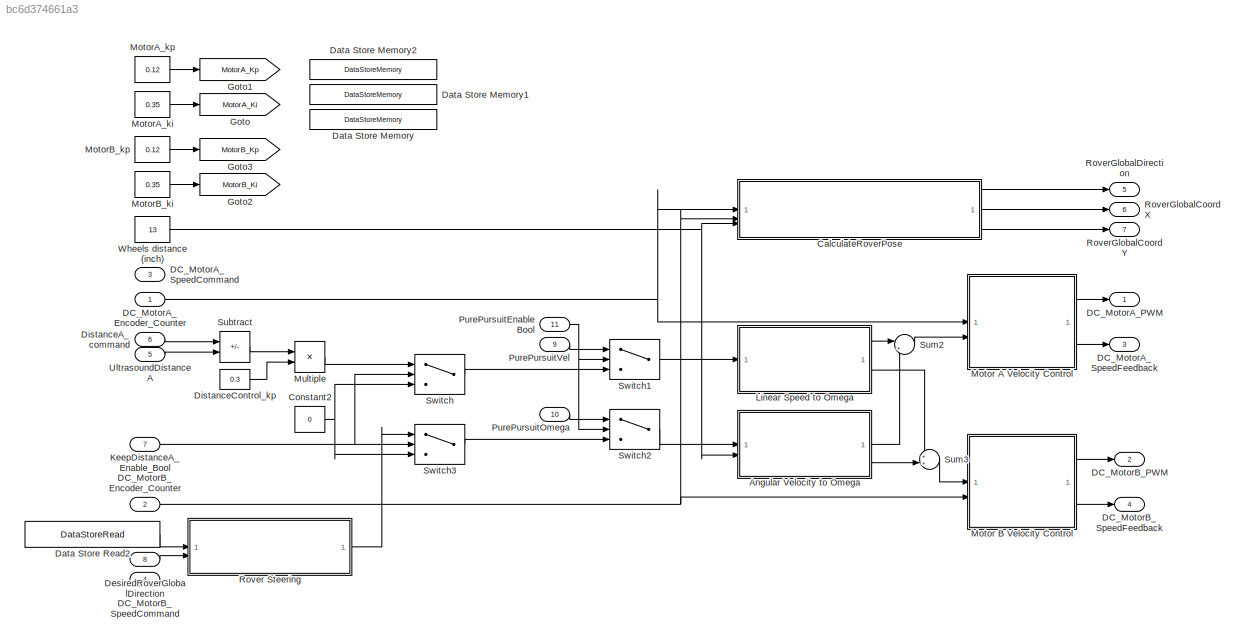
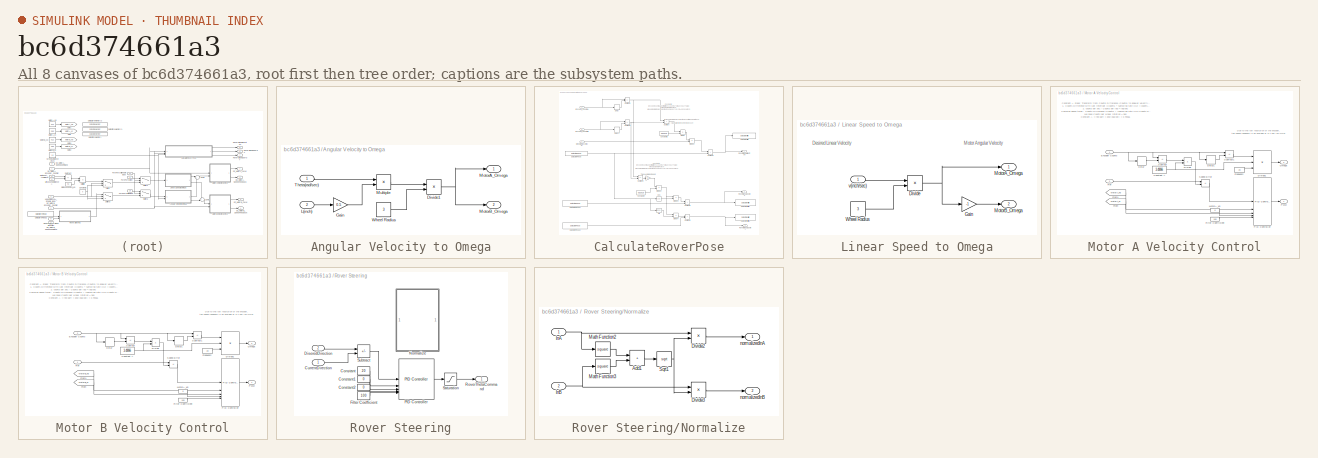
[diagram: thumbnail index - all 8 canvases of the model, root first then tree order]
MODEL slx_bc6d374661a3
KIND model
CONFIG AbsTol = auto
CONFIG EnableMultiTasking = off
CONFIG FixedStep = 0.005
CONFIG MaxStep = auto
CONFIG MinStep = auto
CONFIG RelTol = 1e-3
CONFIG SampleTimeConstraint = Unconstrained
CONFIG SolverName = FixedStepDiscrete
CONFIG StartTime = 0.0
CONFIG StopTime = Inf
WORKSPACE source: mxarray member
WORKSPACE SetSpeed = 0
BLOCK [SubSystem] Angular Velocity to Omega
BLOCK [Product] Angular Velocity to Omega/Divide1
  Inputs = */
BLOCK [Gain] Angular Velocity to Omega/Gain
  Gain = 0.5
BLOCK [Inport] Angular Velocity to Omega/L(inch)
  Port = 2
BLOCK [Outport] Angular Velocity to Omega/MotorA_Omega
BLOCK [Outport] Angular Velocity to Omega/MotorB_Omega
  Port = 2
BLOCK [Product] Angular Velocity to Omega/Multiple
  Inputs = **
BLOCK [Inport] Angular Velocity to Omega/Theta(rad//sec)
BLOCK [Constant] Angular Velocity to Omega/Wheel Radius
  Value = 3
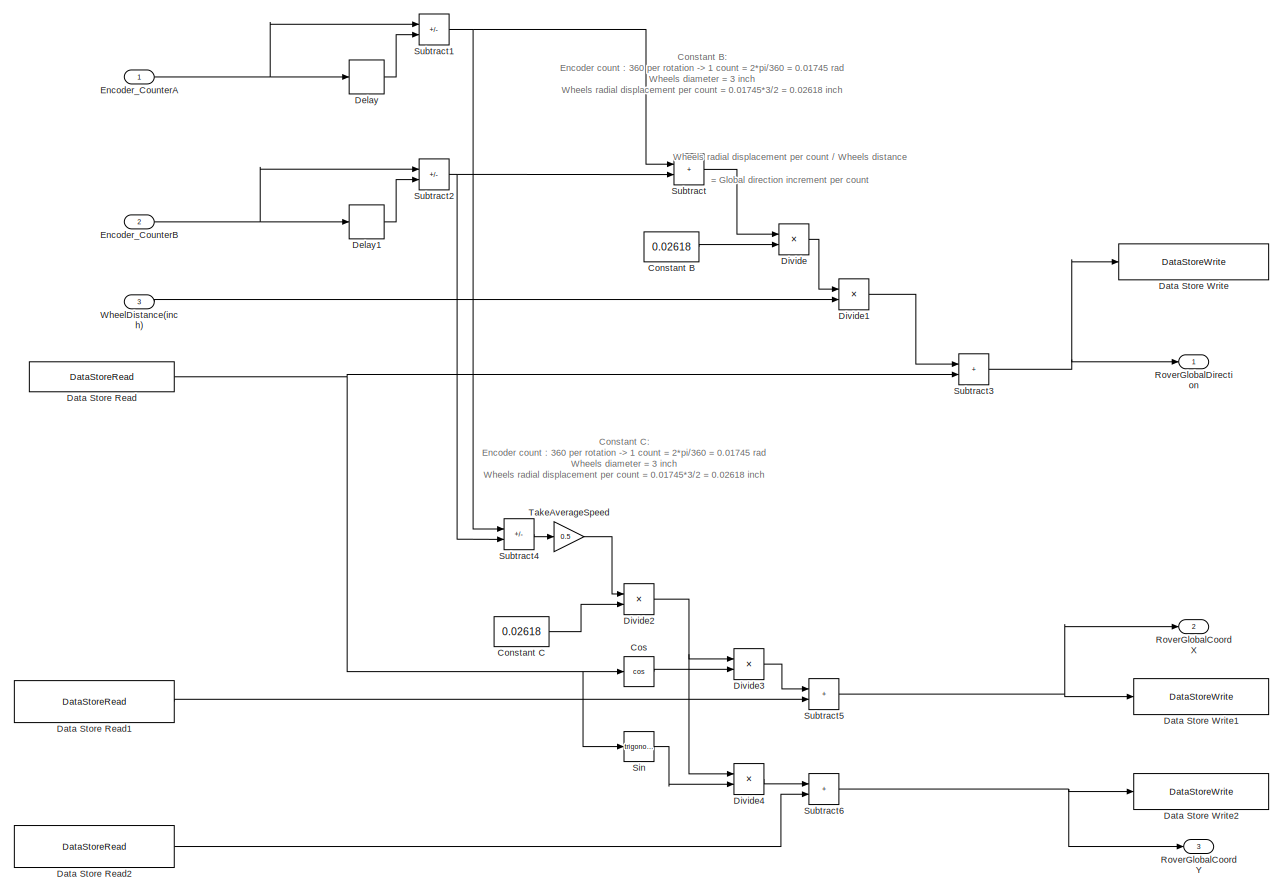
[diagram: CalculateRoverPose - part 1/1, most of the canvas]
BLOCK [SubSystem] CalculateRoverPose
BLOCK [Constant] CalculateRoverPose/Constant B
  Value = 0.02618
BLOCK [Constant] CalculateRoverPose/Constant C
  Value = 0.02618
BLOCK [Trigonometry] CalculateRoverPose/Cos
  Operator = cos
BLOCK [DataStoreRead] CalculateRoverPose/Data Store Read
  DataStoreName = CurrentGlobalDirection
  IndexOptions = Index vector (dialog)
  Indices = 1
  OutputSizes = 1
BLOCK [DataStoreRead] CalculateRoverPose/Data Store Read1
  DataStoreName = CurrentGlobalCoordinateX
  IndexOptions = Index vector (dialog)
  Indices = 1
  OutputSizes = 1
BLOCK [DataStoreRead] CalculateRoverPose/Data Store Read2
  DataStoreName = CurrentGlobalCoordinateY
  IndexOptions = Index vector (dialog)
  Indices = 1
  OutputSizes = 1
BLOCK [DataStoreWrite] CalculateRoverPose/Data Store Write
  DataStoreName = CurrentGlobalDirection
  IndexOptions = Index vector (dialog)
  Indices = 1
  OutputSizes = 1
BLOCK [DataStoreWrite] CalculateRoverPose/Data Store Write1
  DataStoreName = CurrentGlobalCoordinateX
  IndexOptions = Index vector (dialog)
  Indices = 1
  OutputSizes = 1
BLOCK [DataStoreWrite] CalculateRoverPose/Data Store Write2
  DataStoreName = CurrentGlobalCoordinateY
  IndexOptions = Index vector (dialog)
  Indices = 1
  OutputSizes = 1
BLOCK [Delay] CalculateRoverPose/Delay
  DelayLength = 1
  InputPortMap = u0
BLOCK [Delay] CalculateRoverPose/Delay1
  DelayLength = 1
  InputPortMap = u0
BLOCK [Product] CalculateRoverPose/Divide
  Inputs = **
BLOCK [Product] CalculateRoverPose/Divide1
  Inputs = */
BLOCK [Product] CalculateRoverPose/Divide2
  Inputs = **
BLOCK [Product] CalculateRoverPose/Divide3
  Inputs = **
BLOCK [Product] CalculateRoverPose/Divide4
  Inputs = **
BLOCK [Inport] CalculateRoverPose/Encoder_CounterA
BLOCK [Inport] CalculateRoverPose/Encoder_CounterB
  Port = 2
BLOCK [Outport] CalculateRoverPose/RoverGlobalCoordX
  Port = 2
BLOCK [Outport] CalculateRoverPose/RoverGlobalCoordY
  Port = 3
BLOCK [Outport] CalculateRoverPose/RoverGlobalDirection
BLOCK [Trigonometry] CalculateRoverPose/Sin
BLOCK [Sum] CalculateRoverPose/Subtract
  IconShape = rectangular
BLOCK [Sum] CalculateRoverPose/Subtract1
  IconShape = rectangular
  Inputs = +-
BLOCK [Sum] CalculateRoverPose/Subtract2
  IconShape = rectangular
  Inputs = +-
BLOCK [Sum] CalculateRoverPose/Subtract3
  IconShape = rectangular
BLOCK [Sum] CalculateRoverPose/Subtract4
  IconShape = rectangular
  Inputs = +-
BLOCK [Sum] CalculateRoverPose/Subtract5
  IconShape = rectangular
BLOCK [Sum] CalculateRoverPose/Subtract6
  IconShape = rectangular
BLOCK [Gain] CalculateRoverPose/TakeAverageSpeed
  Gain = 0.5
BLOCK [Inport] CalculateRoverPose/WheelDistance(inch)
  Port = 3
BLOCK [Constant] Constant2
  Value = 0
BLOCK [Inport] DC_MotorA_Encoder_Counter
  NameLocation = left
BLOCK [Outport] DC_MotorA_PWM
  NameLocation = right
BLOCK [Inport] DC_MotorA_SpeedCommand
  NameLocation = left
  Port = 3
BLOCK [Outport] DC_MotorA_SpeedFeedback
  NameLocation = right
  Port = 3
BLOCK [Inport] DC_MotorB_Encoder_Counter
  NameLocation = left
  Port = 2
BLOCK [Outport] DC_MotorB_PWM
  NameLocation = right
  Port = 2
BLOCK [Inport] DC_MotorB_SpeedCommand
  NameLocation = left
  Port = 4
BLOCK [Outport] DC_MotorB_SpeedFeedback
  NameLocation = right
  Port = 4
BLOCK [DataStoreMemory] Data Store Memory
  DataStoreName = CurrentGlobalDirection
  ShowAdditionalParam = off
  WriteAfterWriteMsg = warning
BLOCK [DataStoreMemory] Data Store Memory1
  DataStoreName = CurrentGlobalCoordinateX
  ShowAdditionalParam = off
  WriteAfterWriteMsg = warning
BLOCK [DataStoreMemory] Data Store Memory2
  DataStoreName = CurrentGlobalCoordinateY
  ShowAdditionalParam = off
  WriteAfterWriteMsg = warning
BLOCK [DataStoreRead] Data Store Read2
  DataStoreName = CurrentGlobalDirection
  IndexOptions = Index vector (dialog)
  Indices = 1
  OutputSizes = 1
BLOCK [Inport] DesiredRoverGlobalDirection
  NameLocation = left
  Port = 8
BLOCK [Inport] DistanceA_command
  NameLocation = left
  Port = 6
BLOCK [Constant] DistanceControl_kp
  Value = 0.3
BLOCK [Goto] Goto
  GotoTag = MotorA_Ki
  TagVisibility = global
BLOCK [Goto] Goto1
  GotoTag = MotorA_Kp
  TagVisibility = global
BLOCK [Goto] Goto2
  GotoTag = MotorB_Ki
  TagVisibility = global
BLOCK [Goto] Goto3
  GotoTag = MotorB_Kp
  TagVisibility = global
BLOCK [Inport] KeepDistanceA_Enable_Bool
  NameLocation = left
  Port = 7
BLOCK [SubSystem] Linear Speed to Omega
BLOCK [Product] Linear Speed to Omega/Divide
  Inputs = */
BLOCK [Gain] Linear Speed to Omega/Gain
  Gain = -1
BLOCK [Outport] Linear Speed to Omega/MotorA_Omega
BLOCK [Outport] Linear Speed to Omega/MotorB_Omega
  Port = 2
BLOCK [Constant] Linear Speed to Omega/Wheel Radius
  Value = 3
BLOCK [Inport] Linear Speed to Omega/v(inch//sec)
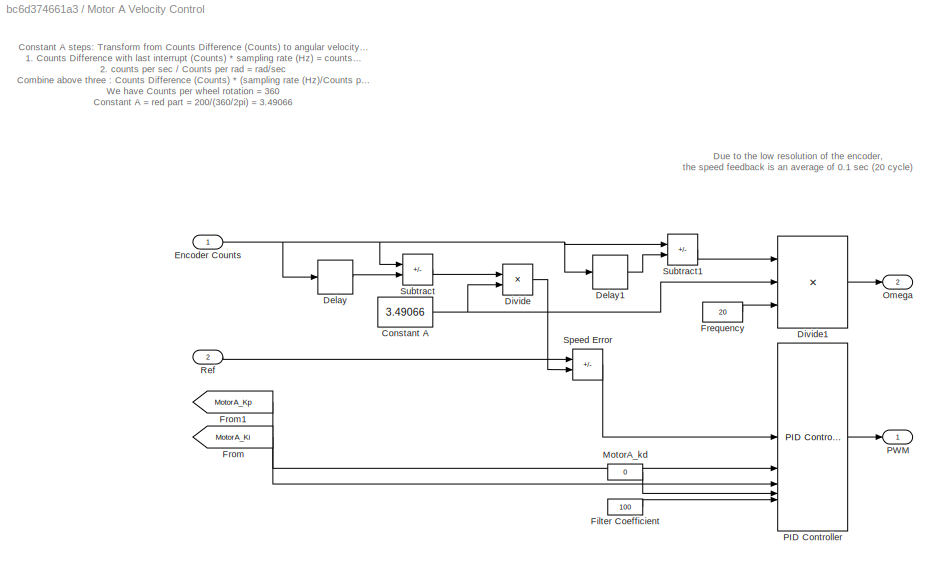
BLOCK [SubSystem] Motor A Velocity Control
BLOCK [Constant] Motor A Velocity Control/Constant A
  Value = 3.49066
BLOCK [Delay] Motor A Velocity Control/Delay
  DelayLength = 1
  InputPortMap = u0
BLOCK [Delay] Motor A Velocity Control/Delay1
  DelayLength = 20
  InputPortMap = u0
BLOCK [Product] Motor A Velocity Control/Divide
  Inputs = **
BLOCK [Product] Motor A Velocity Control/Divide1
  Inputs = **/
BLOCK [Inport] Motor A Velocity Control/Encoder Counts
BLOCK [Constant] Motor A Velocity Control/Filter Coefficient
  NameLocation = left
  Value = 100
BLOCK [Constant] Motor A Velocity Control/Frequency
  Value = 20
BLOCK [From] Motor A Velocity Control/From
  GotoTag = MotorA_Ki
  TagVisibility = global
BLOCK [From] Motor A Velocity Control/From1
  GotoTag = MotorA_Kp
  TagVisibility = global
BLOCK [Constant] Motor A Velocity Control/MotorA_kd
  NameLocation = left
  Value = 0
BLOCK [Outport] Motor A Velocity Control/Omega
  Port = 2
BLOCK [Reference] Motor A Velocity Control/PID Controller  REF=slpidlib/PID Controller
  LibrarySourceBlock = simulink/Continuous/PID Controller
  SourceBlock = slpidlib/PID Controller
  SourceType = PID 1dof
BLOCK [Outport] Motor A Velocity Control/PWM
BLOCK [Inport] Motor A Velocity Control/Ref
  Port = 2
BLOCK [Sum] Motor A Velocity Control/Speed Error
  IconShape = rectangular
  Inputs = +-
BLOCK [Sum] Motor A Velocity Control/Subtract
  IconShape = rectangular
  Inputs = +-
BLOCK [Sum] Motor A Velocity Control/Subtract1
  IconShape = rectangular
  Inputs = +-
BLOCK [SubSystem] Motor B Velocity Control
BLOCK [Constant] Motor B Velocity Control/Constant A
  Value = 3.49066
BLOCK [Delay] Motor B Velocity Control/Delay
  DelayLength = 1
  InputPortMap = u0
BLOCK [Delay] Motor B Velocity Control/Delay1
  DelayLength = 20
  InputPortMap = u0
BLOCK [Product] Motor B Velocity Control/Divide
  Inputs = **
BLOCK [Product] Motor B Velocity Control/Divide1
  Inputs = **/
BLOCK [Inport] Motor B Velocity Control/Encoder Counts
  Port = 2
BLOCK [Constant] Motor B Velocity Control/Filter Coefficient
  NameLocation = left
  Value = 100
BLOCK [Constant] Motor B Velocity Control/Frequency
  Value = 20
BLOCK [From] Motor B Velocity Control/From
  GotoTag = MotorB_Ki
  TagVisibility = global
BLOCK [From] Motor B Velocity Control/From1
  GotoTag = MotorB_Kp
  TagVisibility = global
BLOCK [Constant] Motor B Velocity Control/MotorA_kd
  NameLocation = left
  Value = 0
BLOCK [Outport] Motor B Velocity Control/Omega
  Port = 2
BLOCK [Reference] Motor B Velocity Control/PID Controller  REF=slpidlib/PID Controller
  SourceBlock = slpidlib/PID Controller
  SourceType = PID 1dof
BLOCK [Outport] Motor B Velocity Control/PWM
BLOCK [Inport] Motor B Velocity Control/Ref
BLOCK [Sum] Motor B Velocity Control/Speed Error
  IconShape = rectangular
  Inputs = +-
BLOCK [Sum] Motor B Velocity Control/Subtract
  IconShape = rectangular
  Inputs = +-
BLOCK [Sum] Motor B Velocity Control/Subtract1
  IconShape = rectangular
  Inputs = +-
BLOCK [Constant] MotorA_ki
  NameLocation = left
  Value = 0.35
BLOCK [Constant] MotorA_kp
  NameLocation = left
  Value = 0.12
BLOCK [Constant] MotorB_ki
  NameLocation = left
  Value = 0.35
BLOCK [Constant] MotorB_kp
  NameLocation = left
  Value = 0.12
BLOCK [Product] Multiple
  Inputs = **
BLOCK [Inport] PurePursuitEnableBool
  NameLocation = left
  Port = 11
BLOCK [Inport] PurePursuitOmega
  NameLocation = left
  Port = 10
BLOCK [Inport] PurePursuitVel
  NameLocation = left
  Port = 9
BLOCK [SubSystem] Rover Steering
BLOCK [Constant] Rover Steering/Constant
  Value = 20
BLOCK [Constant] Rover Steering/Constant1
  Value = 0
BLOCK [Constant] Rover Steering/Constant2
  Value = 0
BLOCK [Inport] Rover Steering/CurrentDirection
BLOCK [Inport] Rover Steering/DiseredDirection
  Port = 2
BLOCK [Constant] Rover Steering/Filter Coefficient
  Value = 100
BLOCK [SubSystem] Rover Steering/Normalize
  Commented = on
BLOCK [Sum] Rover Steering/Normalize/Add1
  IconShape = rectangular
BLOCK [Product] Rover Steering/Normalize/Divide2
  Inputs = */
BLOCK [Product] Rover Steering/Normalize/Divide3
  Inputs = */
BLOCK [Inport] Rover Steering/Normalize/InA
BLOCK [Inport] Rover Steering/Normalize/InB
  Port = 2
BLOCK [Math] Rover Steering/Normalize/Math Function2
  Operator = square
BLOCK [Math] Rover Steering/Normalize/Math Function3
  Operator = square
BLOCK [Sqrt] Rover Steering/Normalize/Sqrt1
BLOCK [Outport] Rover Steering/Normalize/normalizedInA
BLOCK [Outport] Rover Steering/Normalize/normalizedInB
  Port = 2
BLOCK [Reference] Rover Steering/PID Controller  REF=slpidlib/PID Controller
  LibrarySourceBlock = simulink/Continuous/PID Controller
  SourceBlock = slpidlib/PID Controller
  SourceType = PID 1dof
BLOCK [Outport] Rover Steering/RoverThetaCommand
BLOCK [Saturate] Rover Steering/Saturation
  LowerLimit = -4
  UpperLimit = 4
BLOCK [Sum] Rover Steering/Subtract
  IconShape = rectangular
  Inputs = +-
BLOCK [Outport] RoverGlobalCoordX
  NameLocation = right
  Port = 6
BLOCK [Outport] RoverGlobalCoordY
  NameLocation = right
  Port = 7
BLOCK [Outport] RoverGlobalDirection
  NameLocation = right
  Port = 5
BLOCK [Sum] Subtract
  IconShape = rectangular
  Inputs = +-
BLOCK [Sum] Sum2
  Inputs = |++
BLOCK [Sum] Sum3
  Inputs = ++|
BLOCK [Switch] Switch
  Criteria = u2 > Threshold
  InputSameDT = off
  SaturateOnIntegerOverflow = off
BLOCK [Switch] Switch1
  Criteria = u2 > Threshold
  InputSameDT = off
  SaturateOnIntegerOverflow = off
BLOCK [Switch] Switch2
  Criteria = u2 > Threshold
  InputSameDT = off
  SaturateOnIntegerOverflow = off
BLOCK [Switch] Switch3
  Criteria = u2 > Threshold
  InputSameDT = off
  SaturateOnIntegerOverflow = off
BLOCK [Inport] UltrasoundDistanceA
  NameLocation = left
  Port = 5
BLOCK [Constant] Wheels distance (inch)
  NameLocation = left
  Value = 13
ANNOTATION CalculateRoverPose: Constant B: Encoder count : 360 per rotation -> 1 count = 2*pi/360 = 0.01745 rad Wheels diameter = 3 inch Wheels radial displacement per count = 0.01745*3/2 = 0.02618 inch
ANNOTATION CalculateRoverPose: Constant C: Encoder count : 360 per rotation -> 1 count = 2*pi/360 = 0.01745 rad Wheels diameter = 3 inch Wheels radial displacement per count = 0.01745*3/2 = 0.02618 inch
ANNOTATION CalculateRoverPose: Wheels radial displacement per count / Wheels distance = Global direction increment per count
ANNOTATION Linear Speed to Omega: Desired Linear Velocity
ANNOTATION Linear Speed to Omega: Motor Angular Velocity
ANNOTATION Motor A Velocity Control: Constant A steps: Transform from Counts Difference (Counts) to angular velocity (rad/sec) 1. Counts Difference with last interrupt (Counts) * sampling rate (Hz) = counts per sec 2. counts per sec / Counts per rad = rad/sec Combine above three : Counts Difference (Counts) * (sampling rate (Hz)/Counts per rad = wheel angular speed (rad/sec) We have Counts per wheel rotation = 360 Constant A = red pa...<+28ch>
ANNOTATION Motor A Velocity Control: Due to the low resolution of the encoder, the speed feedback is an average of 0.1 sec (20 cycle)
ANNOTATION Motor B Velocity Control: Constant A steps: Transform from Counts Difference (Counts) to angular velocity (rad/sec) 1. Counts Difference with last interrupt (Counts) * sampling rate (Hz) = counts per sec 2. counts per sec / Counts per rad = rad/sec Combine above three : Counts Difference (Counts) * (sampling rate (Hz)/Counts per rad = wheel angular speed (rad/sec) We have Counts per wheel rotation = 360 Constant A = red pa...<+28ch>
ANNOTATION Motor B Velocity Control: Due to the low resolution of the encoder, the speed feedback is an average of 0.1 sec (20 cycle)
NET Angular Velocity to Omega/Divide1:1 -> Angular Velocity to Omega/MotorA_Omega:1, Angular Velocity to Omega/MotorB_Omega:1
LINE Angular Velocity to Omega/Gain:1 -> Angular Velocity to Omega/Multiple:2
LINE Angular Velocity to Omega/L(inch):1 -> Angular Velocity to Omega/Gain:1
LINE Angular Velocity to Omega/Multiple:1 -> Angular Velocity to Omega/Divide1:1
LINE Angular Velocity to Omega/Theta(rad//sec):1 -> Angular Velocity to Omega/Multiple:1
LINE Angular Velocity to Omega/Wheel Radius:1 -> Angular Velocity to Omega/Divide1:2
LINE Angular Velocity to Omega:1 -> Sum2:2
LINE Angular Velocity to Omega:2 -> Sum3:2
LINE CalculateRoverPose/Constant B:1 -> CalculateRoverPose/Divide:2
LINE CalculateRoverPose/Constant C:1 -> CalculateRoverPose/Divide2:2
LINE CalculateRoverPose/Cos:1 -> CalculateRoverPose/Divide3:2
LINE CalculateRoverPose/Data Store Read1:1 -> CalculateRoverPose/Subtract5:2
LINE CalculateRoverPose/Data Store Read2:1 -> CalculateRoverPose/Subtract6:2
NET CalculateRoverPose/Data Store Read:1 -> CalculateRoverPose/Cos:1, CalculateRoverPose/Sin:1, CalculateRoverPose/Subtract3:2
LINE CalculateRoverPose/Delay1:1 -> CalculateRoverPose/Subtract2:2
LINE CalculateRoverPose/Delay:1 -> CalculateRoverPose/Subtract1:2
LINE CalculateRoverPose/Divide1:1 -> CalculateRoverPose/Subtract3:1
NET CalculateRoverPose/Divide2:1 -> CalculateRoverPose/Divide3:1, CalculateRoverPose/Divide4:1
LINE CalculateRoverPose/Divide3:1 -> CalculateRoverPose/Subtract5:1
LINE CalculateRoverPose/Divide4:1 -> CalculateRoverPose/Subtract6:1
LINE CalculateRoverPose/Divide:1 -> CalculateRoverPose/Divide1:1
NET CalculateRoverPose/Encoder_CounterA:1 -> CalculateRoverPose/Delay:1, CalculateRoverPose/Subtract1:1
NET CalculateRoverPose/Encoder_CounterB:1 -> CalculateRoverPose/Delay1:1, CalculateRoverPose/Subtract2:1
LINE CalculateRoverPose/Sin:1 -> CalculateRoverPose/Divide4:2
NET CalculateRoverPose/Subtract1:1 -> CalculateRoverPose/Subtract4:1, CalculateRoverPose/Subtract:1
NET CalculateRoverPose/Subtract2:1 -> CalculateRoverPose/Subtract4:2, CalculateRoverPose/Subtract:2
NET CalculateRoverPose/Subtract3:1 -> CalculateRoverPose/Data Store Write:1, CalculateRoverPose/RoverGlobalDirection:1
LINE CalculateRoverPose/Subtract4:1 -> CalculateRoverPose/TakeAverageSpeed:1
NET CalculateRoverPose/Subtract5:1 -> CalculateRoverPose/Data Store Write1:1, CalculateRoverPose/RoverGlobalCoordX:1
NET CalculateRoverPose/Subtract6:1 -> CalculateRoverPose/Data Store Write2:1, CalculateRoverPose/RoverGlobalCoordY:1
LINE CalculateRoverPose/Subtract:1 -> CalculateRoverPose/Divide:1
LINE CalculateRoverPose/TakeAverageSpeed:1 -> CalculateRoverPose/Divide2:1
LINE CalculateRoverPose/WheelDistance(inch):1 -> CalculateRoverPose/Divide1:2
LINE CalculateRoverPose:1 -> RoverGlobalDirection:1
LINE CalculateRoverPose:2 -> RoverGlobalCoordX:1
LINE CalculateRoverPose:3 -> RoverGlobalCoordY:1
NET Constant2:1 -> Switch3:3, Switch:3
NET DC_MotorA_Encoder_Counter:1 -> CalculateRoverPose:1, Motor A Velocity Control:1
NET DC_MotorB_Encoder_Counter:1 -> CalculateRoverPose:2, Motor B Velocity Control:2
LINE Data Store Read2:1 -> Rover Steering:1
LINE DesiredRoverGlobalDirection:1 -> Rover Steering:2
LINE DistanceA_command:1 -> Subtract:1
LINE DistanceControl_kp:1 -> Multiple:2
NET KeepDistanceA_Enable_Bool:1 -> Switch3:2, Switch:2
NET Linear Speed to Omega/Divide:1 -> Linear Speed to Omega/Gain:1, Linear Speed to Omega/MotorA_Omega:1
LINE Linear Speed to Omega/Gain:1 -> Linear Speed to Omega/MotorB_Omega:1
LINE Linear Speed to Omega/Wheel Radius:1 -> Linear Speed to Omega/Divide:2
LINE Linear Speed to Omega/v(inch//sec):1 -> Linear Speed to Omega/Divide:1
LINE Linear Speed to Omega:1 -> Sum2:1
LINE Linear Speed to Omega:2 -> Sum3:1
NET Motor A Velocity Control/Constant A:1 -> Motor A Velocity Control/Divide1:2, Motor A Velocity Control/Divide:2
LINE Motor A Velocity Control/Delay1:1 -> Motor A Velocity Control/Subtract1:2
LINE Motor A Velocity Control/Delay:1 -> Motor A Velocity Control/Subtract:2
LINE Motor A Velocity Control/Divide1:1 -> Motor A Velocity Control/Omega:1
LINE Motor A Velocity Control/Divide:1 -> Motor A Velocity Control/Speed Error:2
NET Motor A Velocity Control/Encoder Counts:1 -> Motor A Velocity Control/Delay1:1, Motor A Velocity Control/Delay:1, Motor A Velocity Control/Subtract1:1, Motor A Velocity Control/Subtract:1
LINE Motor A Velocity Control/Filter Coefficient:1 -> Motor A Velocity Control/PID Controller:5
LINE Motor A Velocity Control/Frequency:1 -> Motor A Velocity Control/Divide1:3
LINE Motor A Velocity Control/From1:1 -> Motor A Velocity Control/PID Controller:2
LINE Motor A Velocity Control/From:1 -> Motor A Velocity Control/PID Controller:3
LINE Motor A Velocity Control/MotorA_kd:1 -> Motor A Velocity Control/PID Controller:4
LINE Motor A Velocity Control/PID Controller:1 -> Motor A Velocity Control/PWM:1
LINE Motor A Velocity Control/Ref:1 -> Motor A Velocity Control/Speed Error:1
LINE Motor A Velocity Control/Speed Error:1 -> Motor A Velocity Control/PID Controller:1
LINE Motor A Velocity Control/Subtract1:1 -> Motor A Velocity Control/Divide1:1
LINE Motor A Velocity Control/Subtract:1 -> Motor A Velocity Control/Divide:1
LINE Motor A Velocity Control:1 -> DC_MotorA_PWM:1
LINE Motor A Velocity Control:2 -> DC_MotorA_SpeedFeedback:1
NET Motor B Velocity Control/Constant A:1 -> Motor B Velocity Control/Divide1:2, Motor B Velocity Control/Divide:2
LINE Motor B Velocity Control/Delay1:1 -> Motor B Velocity Control/Subtract1:2
LINE Motor B Velocity Control/Delay:1 -> Motor B Velocity Control/Subtract:2
LINE Motor B Velocity Control/Divide1:1 -> Motor B Velocity Control/Omega:1
LINE Motor B Velocity Control/Divide:1 -> Motor B Velocity Control/Speed Error:2
NET Motor B Velocity Control/Encoder Counts:1 -> Motor B Velocity Control/Delay1:1, Motor B Velocity Control/Delay:1, Motor B Velocity Control/Subtract1:1, Motor B Velocity Control/Subtract:1
LINE Motor B Velocity Control/Filter Coefficient:1 -> Motor B Velocity Control/PID Controller:5
LINE Motor B Velocity Control/Frequency:1 -> Motor B Velocity Control/Divide1:3
LINE Motor B Velocity Control/From1:1 -> Motor B Velocity Control/PID Controller:2
LINE Motor B Velocity Control/From:1 -> Motor B Velocity Control/PID Controller:3
LINE Motor B Velocity Control/MotorA_kd:1 -> Motor B Velocity Control/PID Controller:4
LINE Motor B Velocity Control/PID Controller:1 -> Motor B Velocity Control/PWM:1
LINE Motor B Velocity Control/Ref:1 -> Motor B Velocity Control/Speed Error:1
LINE Motor B Velocity Control/Speed Error:1 -> Motor B Velocity Control/PID Controller:1
LINE Motor B Velocity Control/Subtract1:1 -> Motor B Velocity Control/Divide1:1
LINE Motor B Velocity Control/Subtract:1 -> Motor B Velocity Control/Divide:1
LINE Motor B Velocity Control:1 -> DC_MotorB_PWM:1
LINE Motor B Velocity Control:2 -> DC_MotorB_SpeedFeedback:1
LINE MotorA_ki:1 -> Goto:1
LINE MotorA_kp:1 -> Goto1:1
LINE MotorB_ki:1 -> Goto2:1
LINE MotorB_kp:1 -> Goto3:1
LINE Multiple:1 -> Switch:1
NET PurePursuitEnableBool:1 -> Switch1:2, Switch2:2
LINE PurePursuitOmega:1 -> Switch2:1
LINE PurePursuitVel:1 -> Switch1:1
LINE Rover Steering/Constant1:1 -> Rover Steering/PID Controller:3
LINE Rover Steering/Constant2:1 -> Rover Steering/PID Controller:4
LINE Rover Steering/Constant:1 -> Rover Steering/PID Controller:2
LINE Rover Steering/CurrentDirection:1 -> Rover Steering/Subtract:2
LINE Rover Steering/DiseredDirection:1 -> Rover Steering/Subtract:1
LINE Rover Steering/Filter Coefficient:1 -> Rover Steering/PID Controller:5
LINE Rover Steering/Normalize/Add1:1 -> Rover Steering/Normalize/Sqrt1:1
LINE Rover Steering/Normalize/Divide2:1 -> Rover Steering/Normalize/normalizedInA:1
LINE Rover Steering/Normalize/Divide3:1 -> Rover Steering/Normalize/normalizedInB:1
NET Rover Steering/Normalize/InA:1 -> Rover Steering/Normalize/Divide2:1, Rover Steering/Normalize/Math Function2:1
NET Rover Steering/Normalize/InB:1 -> Rover Steering/Normalize/Divide3:1, Rover Steering/Normalize/Math Function3:1
LINE Rover Steering/Normalize/Math Function2:1 -> Rover Steering/Normalize/Add1:1
LINE Rover Steering/Normalize/Math Function3:1 -> Rover Steering/Normalize/Add1:2
NET Rover Steering/Normalize/Sqrt1:1 -> Rover Steering/Normalize/Divide2:2, Rover Steering/Normalize/Divide3:2
LINE Rover Steering/PID Controller:1 -> Rover Steering/Saturation:1
LINE Rover Steering/Saturation:1 -> Rover Steering/RoverThetaCommand:1
LINE Rover Steering/Subtract:1 -> Rover Steering/PID Controller:1
LINE Rover Steering:1 -> Switch3:1
LINE Subtract:1 -> Multiple:1
LINE Sum2:1 -> Motor A Velocity Control:2
LINE Sum3:1 -> Motor B Velocity Control:1
LINE Switch1:1 -> Linear Speed to Omega:1
LINE Switch2:1 -> Angular Velocity to Omega:1
LINE Switch3:1 -> Switch2:3
LINE Switch:1 -> Switch1:3
LINE UltrasoundDistanceA:1 -> Subtract:2
NET Wheels distance (inch):1 -> Angular Velocity to Omega:2, CalculateRoverPose:3
note: NET lines group one-source signal fan-out (src -> all destinations, sorted); 1:1 wires keep LINE
